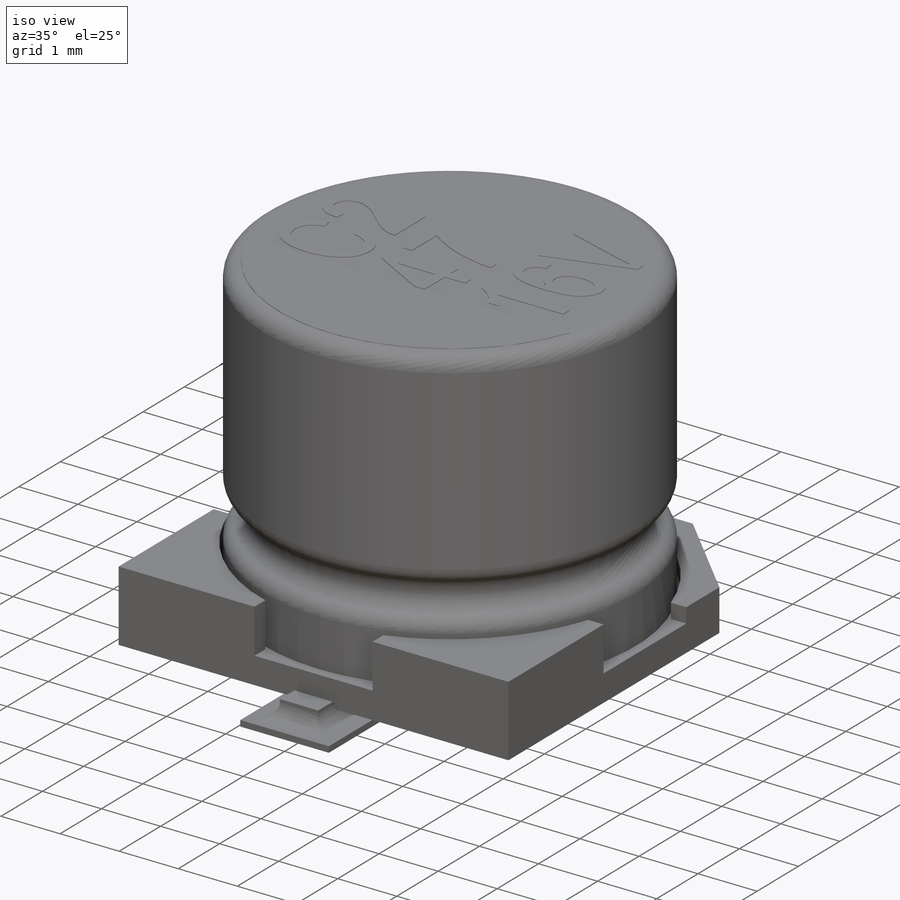
[diagram: iso view]
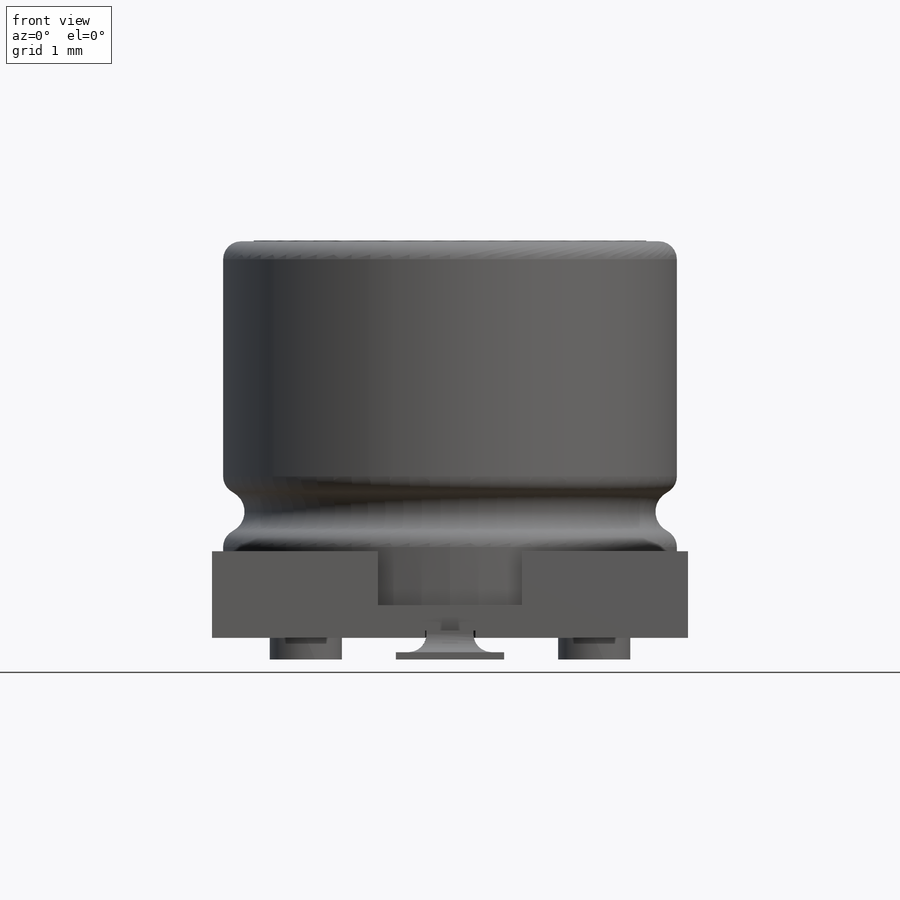
[diagram: front view]
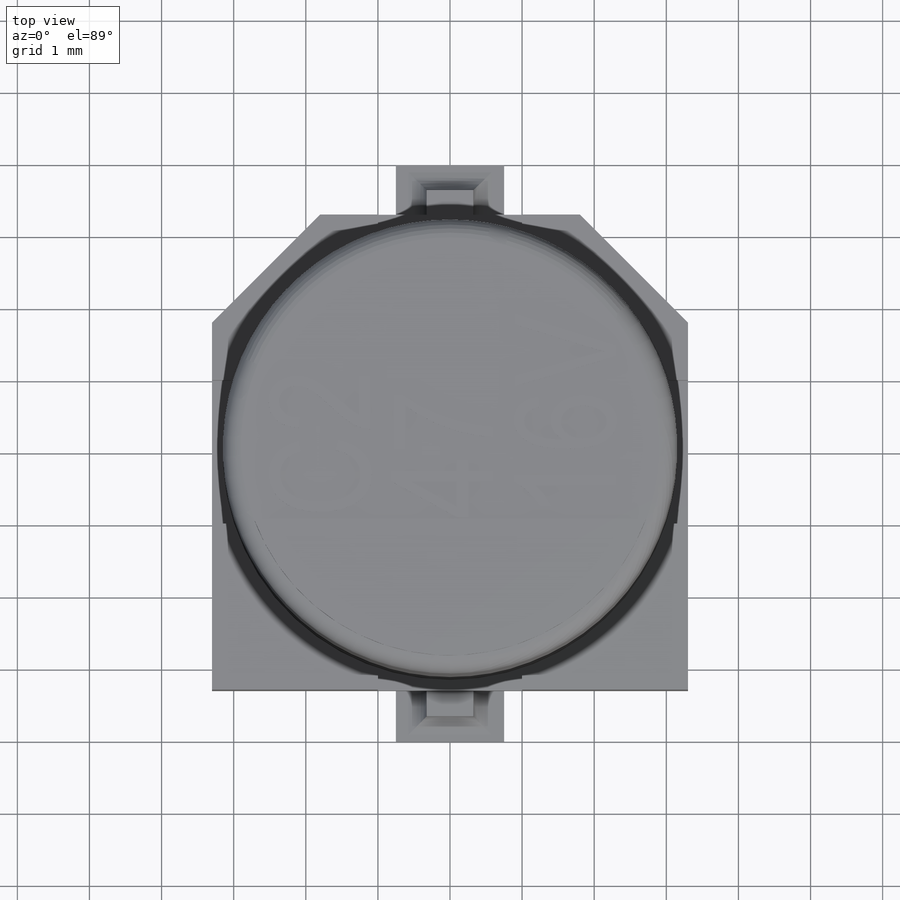
[diagram: top view]
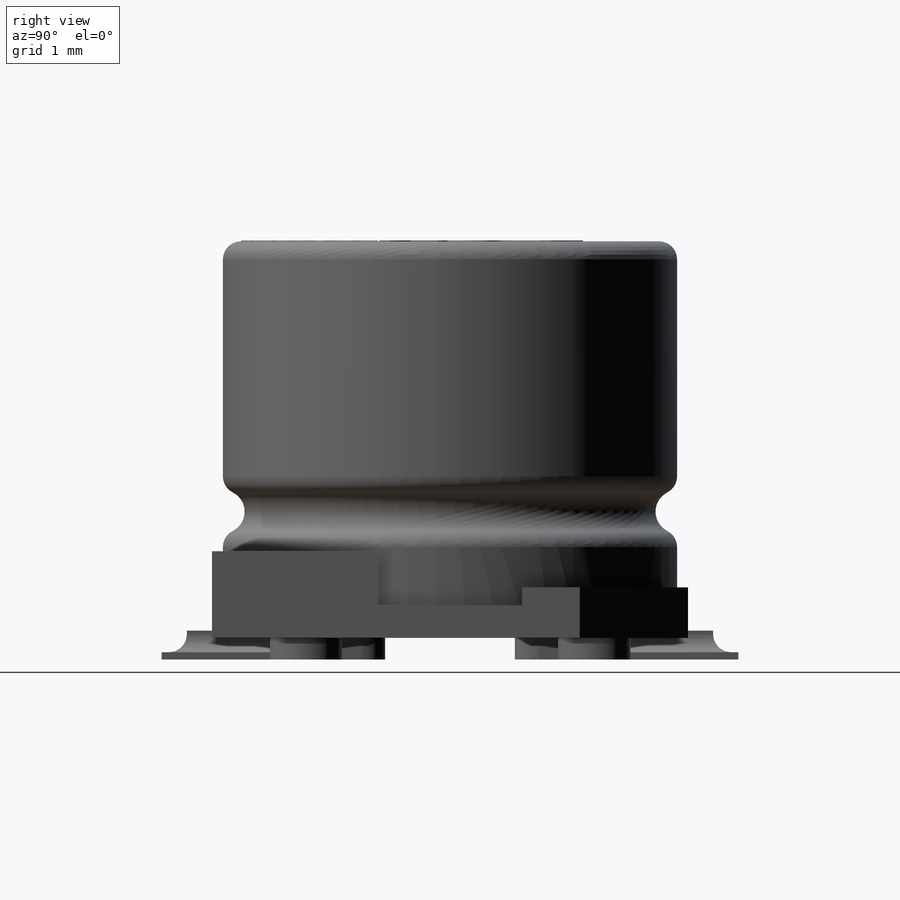
[diagram: right view]
SOLIDWORKS PART (.sldprt)
format: sldprt  version: not decoded by parser v0  size: 606,208 bytes
history: native  units: mm
features: sketch x9, extrude x5, cut_extrude x3, material x1, plane x1, chamfer x1, revolve x1, fillet x1 (+11 scaffold rows collapsed)
feature tree (33):
  scaffold x11  (default folders/planes/origin — collapsed)
  material  "PA Type 6"
  plane  "Plane1"  Offset=0.3mm
  sketch  "Sketch1"  dims[D1=6.6mm D2=6.6mm D3=3.3mm D4=3.3mm]
  extrude  "Boss-Extrude1"  Depth=1.2mm
  sketch  "Sketch2"  dims[D1=6.4mm D2=1.0mm D3=1.0mm D4=1.0mm]
  cut_extrude  "Cut-Extrude1"  Depth=0.75mm
  sketch  "Sketch3"  dims[D1=0.5mm]
  cut_extrude  "Cut-Extrude2"  [1 undecoded]
  chamfer  "Chamfer1"  Distance=1.5mm Angle=45deg
  sketch  "Sketch4"  dims[c1.D2=0.3mm c1.D5=0.25mm c1.D6=0.25mm c1.D1=6.3mm c2.D2=~1.038942mm c2.D3=1.0mm c2.D4=5.8mm]
  revolve  "Revolve1"  Angle=360deg
  sketch  "Sketch6"  dims[D1=0.65mm D2=2.45mm D3=1.225mm D4=0.35mm D5=0.35mm]
  sketch  "Sketch7"  dims[D3=1.0mm D1=0.7mm D2=0.35mm]
  cut_extrude  "Cut-Extrude3"  Depth=0.1mm
  extrude  "Boss-Extrude4"  Depth=0.1mm
  sketch  "Sketch8"  dims[D1=1.0mm D2=2.0mm D3=2.0mm D4=2.0mm D5=2.0mm]
  extrude  "Boss-Extrude5"  Depth=0.3mm
  sketch  "Sketch9"  dims[D1=2.0mm D2=4.0mm D3=1.5mm D4=0.75mm D5=4.0mm]
  extrude  "Boss-Extrude6"  Depth=0.1mm
  fillet  "Fillet1"  Radius=0.25mm
  sketch  "Sketch10"  dims[c1.D1=1.0mm c1.D2=1.1mm c1.D3=0.6mm c1.D4=2.3mm c1.D5=~3.200226mm c2.D3=1.7mm c2.D4=1.7mm c2.D5=3.0mm]
  extrude  "Boss-Extrude7"  Depth=0.01mm
decode coverage: 19 of 20 modeling features carry decoded parameters
note: ~ marks probable driven/reference dimensions
note: 1 parameter value undecoded
note: suppression state not decoded; provenance and decode notes live in map.json
